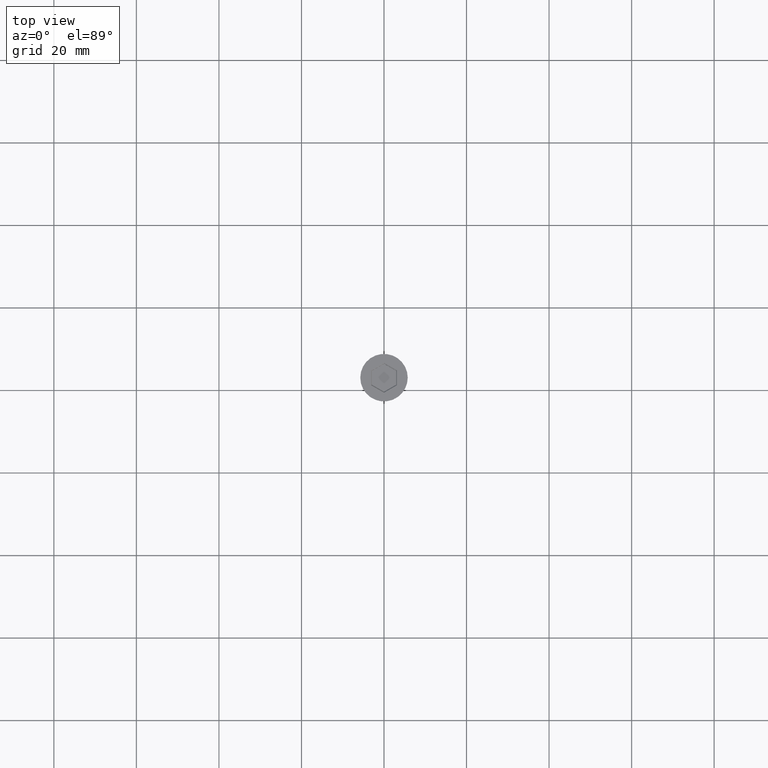
[diagram: clean part render]
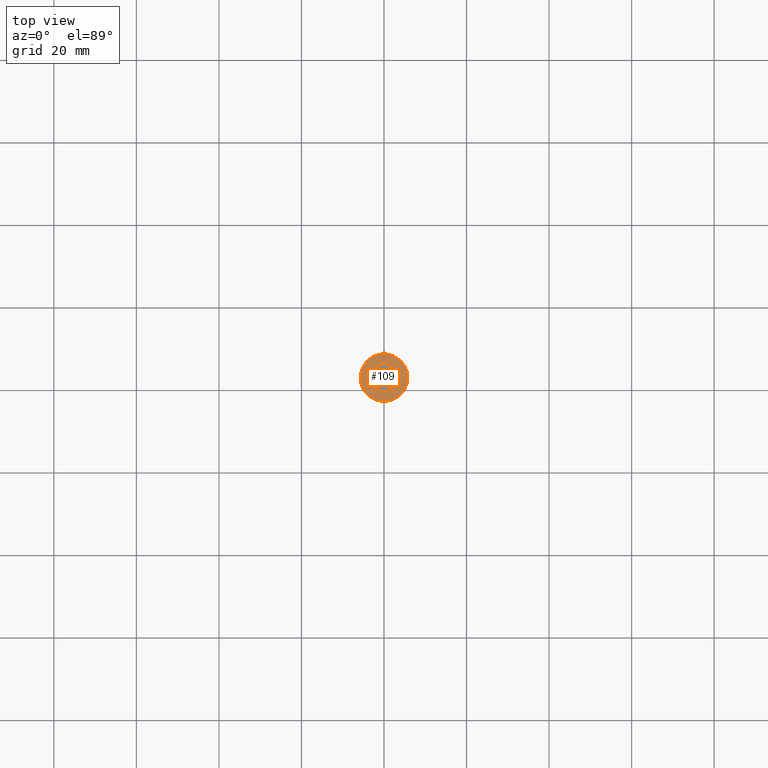
[diagram: same view with one face highlighted and labeled with its STEP entity id]
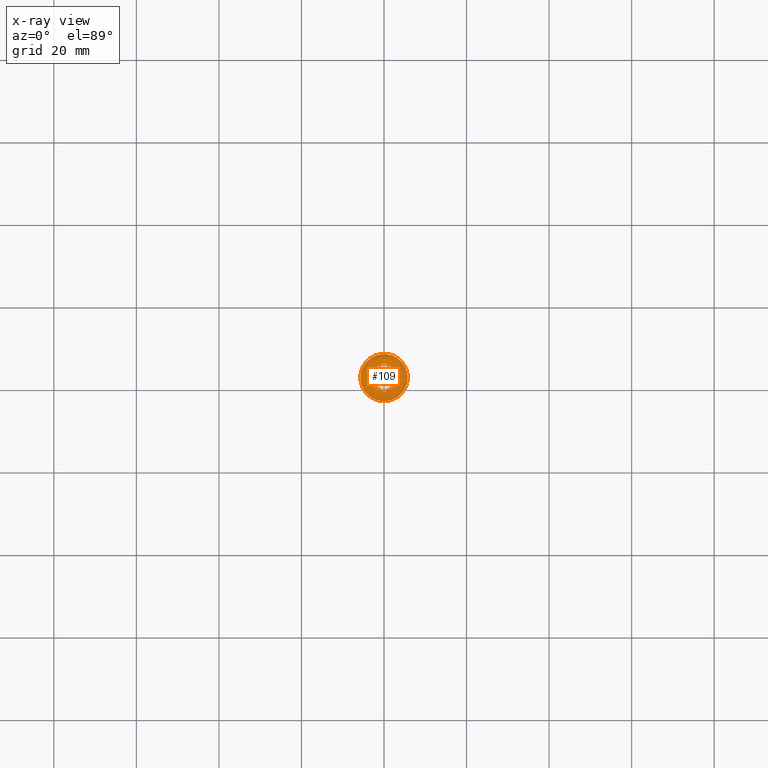
[diagram: x-ray of the same camera — body ghosted, the highlighted face saturated]
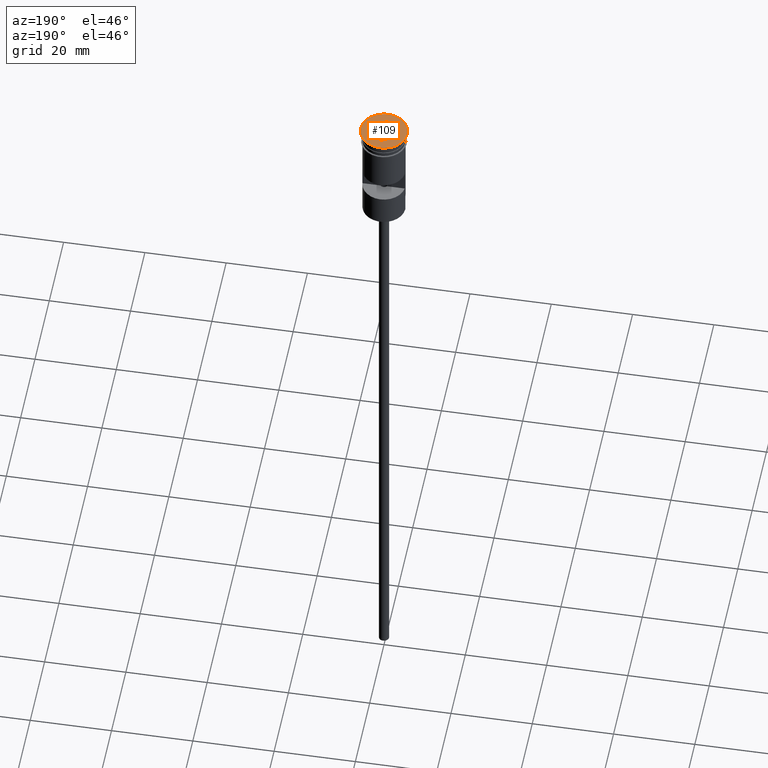
[diagram: same view with one face highlighted and labeled with its STEP entity id]
A machine part, top view. The second image highlights one B-rep face of the part: STEP entity #109.
The next image is the same camera in x-ray: the body ghosted, the highlighted face saturated — about 0% of this face is hidden behind the body in this view.
A second angle (auxiliary view) of the same face is appended — the face is thin or edge-on in the first view.
In plain terms, the highlighted planar face has unit normal (0, -0, 1).
Its self-contained STEP definition (entity closure, byte-faithful):
#21 = VECTOR ( 'NONE', #988, 1000.000000000000000 ) ;
#32 = ORIENTED_EDGE ( 'NONE', *, *, #774, .T. ) ;
#103 = LINE ( 'NONE', #601, #21 ) ;
#109 = ADVANCED_FACE ( 'NONE', ( #281, #1263 ), #1517, .T. ) ;
#122 = CARTESIAN_POINT ( 'NONE',  ( -0.09999999999998934741, 3.579571668975661147, 0.000000000000000000 ) ) ;
#149 = EDGE_CURVE ( 'NONE', #966, #1546, #1162, .T. ) ;
#203 = DIRECTION ( 'NONE',  ( -0.000000000000000000, -0.000000000000000000, 1.000000000000000000 ) ) ;
#236 = DIRECTION ( 'NONE',  ( -0.000000000000000000, -0.000000000000000000, 1.000000000000000000 ) ) ;
#281 = FACE_BOUND ( 'NONE', #1541, .T. ) ;
#289 = CARTESIAN_POINT ( 'NONE',  ( 3.149999999999978151, -1.703183294109396284, 0.000000000000000000 ) ) ;
#326 = CARTESIAN_POINT ( 'NONE',  ( 3.149999999999978151, -1.818653347947309484, 0.000000000000000000 ) ) ;
#332 = CIRCLE ( 'NONE', #431, 5.750000000000000000 ) ;
#391 = ORIENTED_EDGE ( 'NONE', *, *, #149, .T. ) ;
#394 = DIRECTION ( 'NONE',  ( -0.8660254037844385966, 0.5000000000000001110, 0.000000000000000000 ) ) ;
#423 = DIRECTION ( 'NONE',  ( 1.000000000000000000, 0.000000000000000000, 0.000000000000000000 ) ) ;
#431 = AXIS2_PLACEMENT_3D ( 'NONE', #475, #236, #969 ) ;
#432 = DIRECTION ( 'NONE',  ( 1.000000000000000000, 0.000000000000000000, 0.000000000000000000 ) ) ;
#475 = CARTESIAN_POINT ( 'NONE',  ( 0.000000000000000000, 0.000000000000000000, 0.000000000000000000 ) ) ;
#493 = LINE ( 'NONE', #289, #852 ) ;
#501 = EDGE_CURVE ( 'NONE', #1225, #966, #762, .T. ) ;
#502 = CARTESIAN_POINT ( 'NONE',  ( 3.149999999999979039, 1.818653347947308596, 0.000000000000000000 ) ) ;
#515 = CARTESIAN_POINT ( 'NONE',  ( -3.049999999999989608, -1.876388374866265085, 0.000000000000000000 ) ) ;
#560 = AXIS2_PLACEMENT_3D ( 'NONE', #919, #203, #423 ) ;
#589 = VERTEX_POINT ( 'NONE', #326 ) ;
#601 = CARTESIAN_POINT ( 'NONE',  ( 0.09999999999998882005, -3.579571668975661591, 0.000000000000000000 ) ) ;
#605 = EDGE_CURVE ( 'NONE', #769, #1212, #1567, .T. ) ;
#630 = CARTESIAN_POINT ( 'NONE',  ( -3.149999999999978595, -1.818653347947308818, 0.000000000000000000 ) ) ;
#677 = CARTESIAN_POINT ( 'NONE',  ( -3.149999999999978595, 1.703183294109395840, 0.000000000000000000 ) ) ;
#697 = CARTESIAN_POINT ( 'NONE',  ( -4.546348829811041408E-16, -3.637306695894617636, 0.000000000000000000 ) ) ;
#702 = ORIENTED_EDGE ( 'NONE', *, *, #1540, .T. ) ;
#756 = DIRECTION ( 'NONE',  ( 0.000000000000000000, -0.000000000000000000, 1.000000000000000000 ) ) ;
#762 = LINE ( 'NONE', #515, #923 ) ;
#766 = EDGE_CURVE ( 'NONE', #1099, #918, #1439, .T. ) ;
#769 = VERTEX_POINT ( 'NONE', #1216 ) ;
#774 = EDGE_CURVE ( 'NONE', #1212, #769, #332, .T. ) ;
#852 = VECTOR ( 'NONE', #907, 1000.000000000000000 ) ;
#907 = DIRECTION ( 'NONE',  ( -2.546295930062981593E-16, -1.000000000000000000, 0.000000000000000000 ) ) ;
#918 = VERTEX_POINT ( 'NONE', #502 ) ;
#919 = CARTESIAN_POINT ( 'NONE',  ( 0.000000000000000000, 0.000000000000000000, 0.000000000000000000 ) ) ;
#923 = VECTOR ( 'NONE', #394, 1000.000000000000114 ) ;
#943 = ORIENTED_EDGE ( 'NONE', *, *, #1316, .T. ) ;
#966 = VERTEX_POINT ( 'NONE', #630 ) ;
#969 = DIRECTION ( 'NONE',  ( 1.000000000000000000, 0.000000000000000000, 0.000000000000000000 ) ) ;
#984 = DIRECTION ( 'NONE',  ( 0.8660254037844385966, 0.5000000000000001110, 0.000000000000000000 ) ) ;
#988 = DIRECTION ( 'NONE',  ( -0.8660254037844387076, -0.4999999999999998890, 0.000000000000000000 ) ) ;
#991 = ORIENTED_EDGE ( 'NONE', *, *, #766, .T. ) ;
#997 = VECTOR ( 'NONE', #1292, 1000.000000000000000 ) ;
#1051 = CARTESIAN_POINT ( 'NONE',  ( -3.095704393061636416E-16, 3.637306695894617192, 0.000000000000000000 ) ) ;
#1072 = ORIENTED_EDGE ( 'NONE', *, *, #605, .T. ) ;
#1090 = CARTESIAN_POINT ( 'NONE',  ( -3.149999999999978595, 1.818653347947308374, 0.000000000000000000 ) ) ;
#1092 = EDGE_LOOP ( 'NONE', ( #1072, #32 ) ) ;
#1099 = VERTEX_POINT ( 'NONE', #1051 ) ;
#1162 = LINE ( 'NONE', #677, #997 ) ;
#1202 = VECTOR ( 'NONE', #1587, 1000.000000000000000 ) ;
#1212 = VERTEX_POINT ( 'NONE', #1327 ) ;
#1216 = CARTESIAN_POINT ( 'NONE',  ( 5.750000000000000000, 0.000000000000000000, 0.000000000000000000 ) ) ;
#1225 = VERTEX_POINT ( 'NONE', #697 ) ;
#1263 = FACE_OUTER_BOUND ( 'NONE', #1092, .T. ) ;
#1292 = DIRECTION ( 'NONE',  ( 0.000000000000000000, 1.000000000000000000, 0.000000000000000000 ) ) ;
#1305 = EDGE_CURVE ( 'NONE', #918, #589, #493, .T. ) ;
#1316 = EDGE_CURVE ( 'NONE', #1546, #1099, #1528, .T. ) ;
#1326 = AXIS2_PLACEMENT_3D ( 'NONE', #1401, #756, #432 ) ;
#1327 = CARTESIAN_POINT ( 'NONE',  ( -5.750000000000000000, 7.041719095097280880E-16, 0.000000000000000000 ) ) ;
#1401 = CARTESIAN_POINT ( 'NONE',  ( 0.000000000000000000, 0.000000000000000000, 0.000000000000000000 ) ) ;
#1416 = VECTOR ( 'NONE', #984, 1000.000000000000114 ) ;
#1439 = LINE ( 'NONE', #1595, #1202 ) ;
#1460 = ORIENTED_EDGE ( 'NONE', *, *, #1305, .T. ) ;
#1513 = ORIENTED_EDGE ( 'NONE', *, *, #501, .T. ) ;
#1517 = PLANE ( 'NONE',  #1326 ) ;
#1528 = LINE ( 'NONE', #122, #1416 ) ;
#1540 = EDGE_CURVE ( 'NONE', #589, #1225, #103, .T. ) ;
#1541 = EDGE_LOOP ( 'NONE', ( #1513, #391, #943, #991, #1460, #702 ) ) ;
#1546 = VERTEX_POINT ( 'NONE', #1090 ) ;
#1567 = CIRCLE ( 'NONE', #560, 5.750000000000000000 ) ;
#1587 = DIRECTION ( 'NONE',  ( 0.8660254037844387076, -0.4999999999999998890, 0.000000000000000000 ) ) ;
#1595 = CARTESIAN_POINT ( 'NONE',  ( 3.049999999999990052, 1.876388374866264863, 0.000000000000000000 ) ) ;